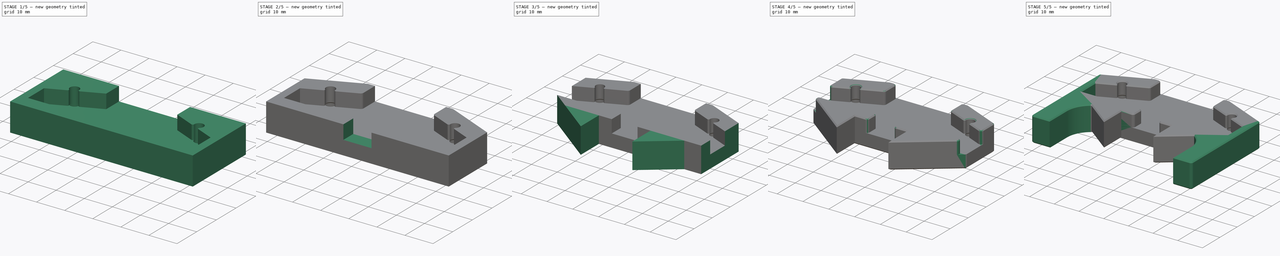
[diagram: build sequence overview — one tinted view per stage of 5, left to right]
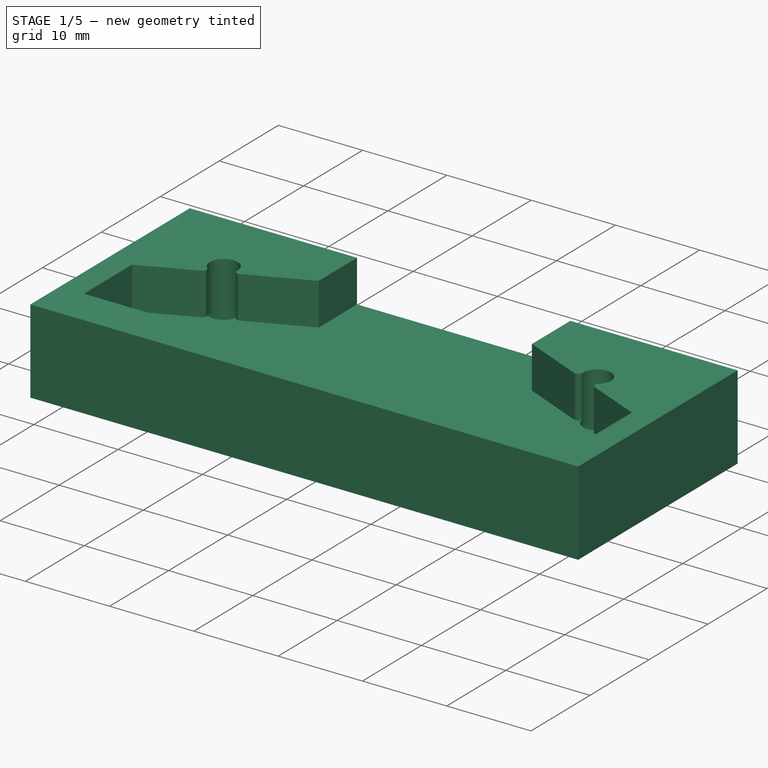
[diagram: stage 1 of 5 — iso view after this stage's code; geometry added in this stage tinted green]
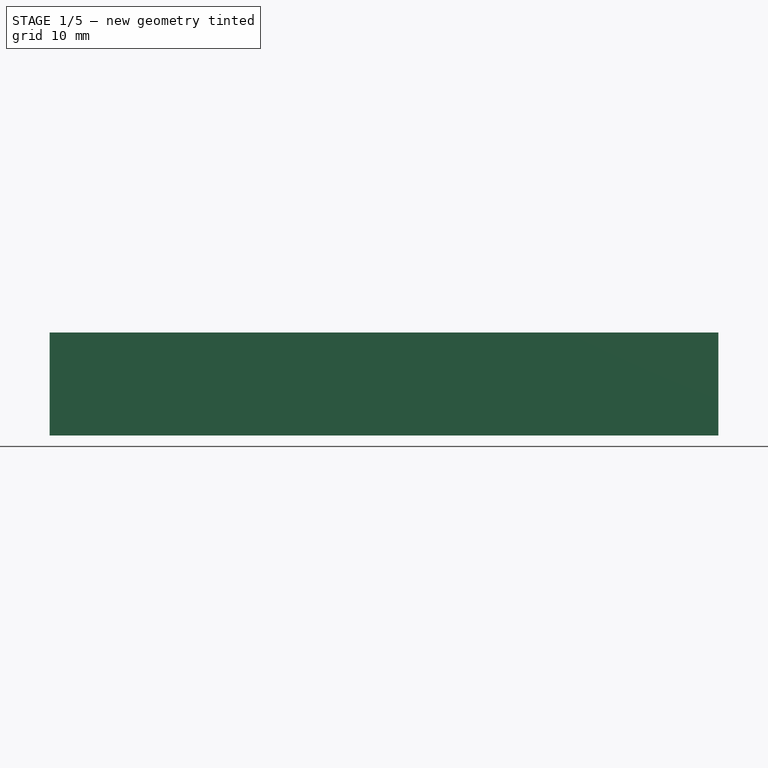
[diagram: stage 1 of 5 — front view after this stage's code; geometry added in this stage tinted green]
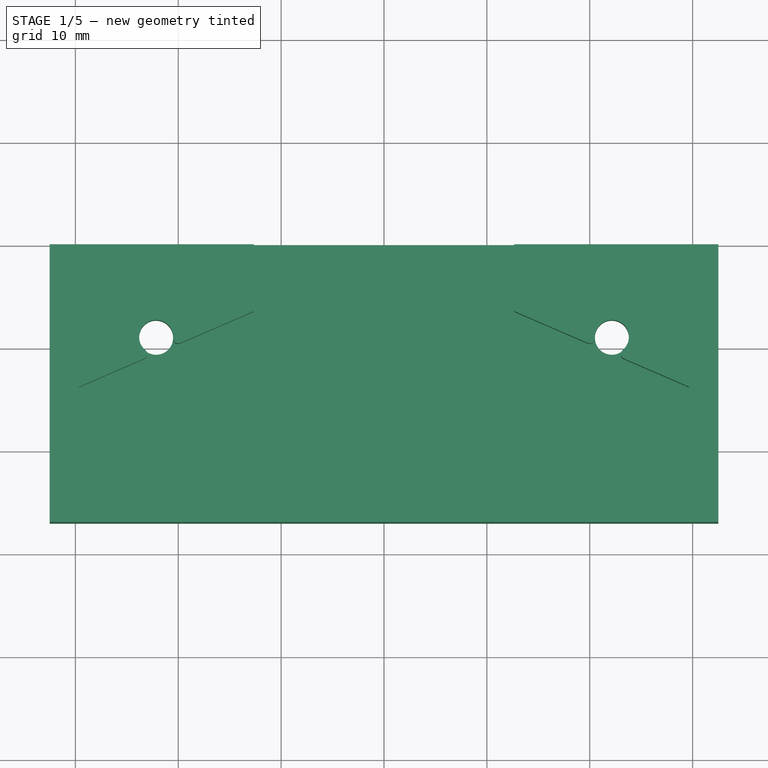
[diagram: stage 1 of 5 — top view after this stage's code; geometry added in this stage tinted green]
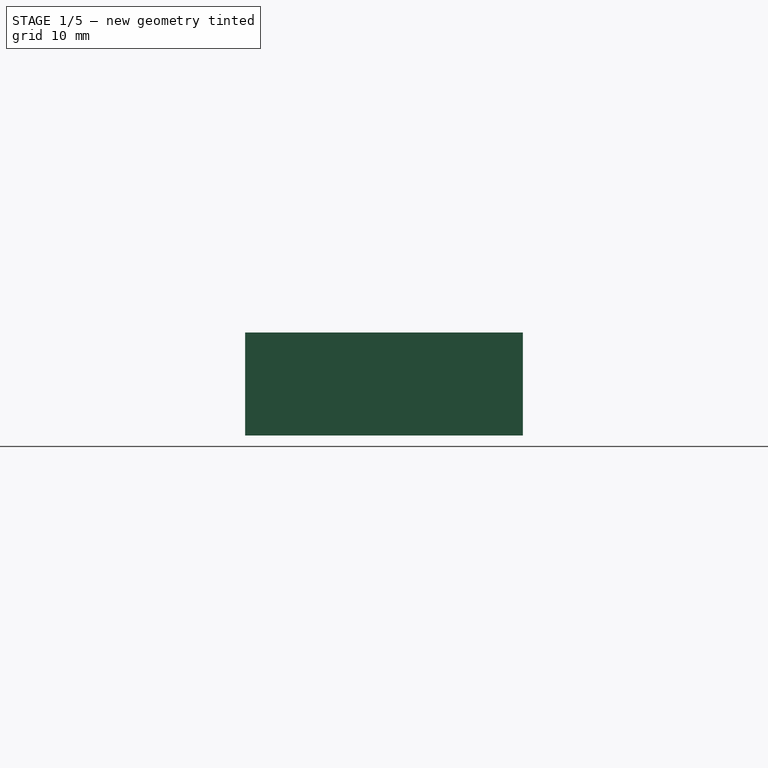
[diagram: stage 1 of 5 — right view after this stage's code; geometry added in this stage tinted green]
FCSTD DOCUMENT  (FreeCAD 0.21R33675 (Git))
Label: radius-caliper
License: All rights reserved
LicenseURL: http://en.wikipedia.org/wiki/All_rights_reserved
objects: Sketcher::SketchObject×9, PartDesign::Pocket×7, PartDesign::Fillet×6, PartDesign::Chamfer×4, PartDesign::Pad×3, PartDesign::Body×2, PartDesign::Mirrored×2, PartDesign::FeatureBase×1
note: 54 computed .brp shape members not serialized (recipe doc carries the construction recipe); baked Part::Feature solids carry a one-line shape summary decoded from their .brp

FEATURE [Sketcher::SketchObject] Sketch
  FullyConstrained = true
  MapMode = 5
  Support = -> [XY_Plane]
  sketch-geometry (4):
    g0: LineSegment StartX=-32.5 StartY=0 StartZ=0 EndX=32.5 EndY=0 EndZ=0
    g1: LineSegment StartX=32.5 StartY=0 StartZ=0 EndX=32.5 EndY=-27 EndZ=0
    g2: LineSegment StartX=32.5 StartY=-27 StartZ=0 EndX=-32.5 EndY=-27 EndZ=0
    g3: LineSegment StartX=-32.5 StartY=-27 StartZ=0 EndX=-32.5 EndY=0 EndZ=0
  constraints (12):
    c: Coincident(g0,g1)
    c: Coincident(g1,g2)
    c: Coincident(g2,g3)
    c: Coincident(g3,g0)
    c: Horizontal(g0)
    c: Horizontal(g2)
    c: Vertical(g1)
    c: Vertical(g3)
    c: PointOnObject(g0,g-1)
    c: DistanceX(g0,g0) = 65
    c: DistanceX(g0,g-1) = 32.5
    c: DistanceY(g3,g3) = 27
FEATURE [PartDesign::Pad] Pad
  Direction = (0,0,1)
  Length = 10
  Length2 = 10
  Profile = -> Sketch
  ReferenceAxis = -> Sketch [N_Axis]
  Type = 0
FEATURE [Sketcher::SketchObject] Sketch001
  ExternalGeometry = -> [Pad]
  FullyConstrained = true
  MapMode = 5
  Placement = pos=(0,0,10) rot=(0,0,1;0rad)
  Support = -> [Pad]
  sketch-geometry (8):
    g0: LineSegment StartX=-29.65 StartY=-22 StartZ=0 EndX=29.65 EndY=-22 EndZ=0
    g1: LineSegment StartX=29.65 StartY=-22 StartZ=0 EndX=29.65 EndY=-13.85 EndZ=0
    g2: LineSegment StartX=29.65 StartY=-13.85 StartZ=0 EndX=12.65 EndY=-6.5 EndZ=0
    g3: LineSegment StartX=12.65 StartY=-6.5 StartZ=0 EndX=12.65 EndY=0 EndZ=0
    g4: LineSegment StartX=12.65 StartY=0 StartZ=0 EndX=-12.65 EndY=0 EndZ=0
    g5: LineSegment StartX=-12.65 StartY=0 StartZ=0 EndX=-12.65 EndY=-6.5 EndZ=0
    g6: LineSegment StartX=-12.65 StartY=-6.5 StartZ=0 EndX=-29.65 EndY=-13.85 EndZ=0
    g7: LineSegment StartX=-29.65 StartY=-13.85 StartZ=0 EndX=-29.65 EndY=-22 EndZ=0
  constraints (24):
    c: Horizontal(g0)
    c: Coincident(g0,g1)
    c: Vertical(g1)
    c: Coincident(g1,g2)
    c: Coincident(g2,g3)
    c: PointOnObject(g3,g-1)
    c: Vertical(g3)
    c: Coincident(g3,g4)
    c: PointOnObject(g4,g-1)
    c: Coincident(g4,g5)
    c: Vertical(g5)
    c: Coincident(g5,g6)
    c: Coincident(g6,g7)
    c: Coincident(g7,g0)
    c: Vertical(g7)
    c: Equal(g7,g1)
    c: Equal(g6,g2)
    c: Equal(g5,g3)
    c: DistanceX(g4,g4) = 25.3
    c: DistanceX(g4,g-1) = 12.65
    c: DistanceX(g0,g0) = 59.3
    c: DistanceY(g7,g7) = 8.15
    c: DistanceY(g0,g5) = 15.5
    c: DistanceY(g-3,g0) = 5
FEATURE [PartDesign::Pocket] Pocket
  BaseFeature = -> Pad
  Direction = (0,0,-1)
  Length = 5
  Length2 = 5
  Profile = -> Sketch001
  ReferenceAxis = -> Sketch001 [N_Axis]
  Type = 0
FEATURE [Sketcher::SketchObject] Sketch002
  ExternalGeometry = -> [Pocket]
  FullyConstrained = true
  MapMode = 5
  Placement = pos=(0,0,10) rot=(0,0,1;0rad)
  Support = -> [Pocket]
  sketch-geometry (4):
    g0: Circle CenterX=-22.15 CenterY=-9.00735 CenterZ=0 NormalX=0 NormalY=0 NormalZ=1 AngleXU=0 Radius=1.65
    g1: Circle CenterX=22.15 CenterY=-9.00735 CenterZ=0 NormalX=0 NormalY=0 NormalZ=1 AngleXU=0 Radius=1.65
    g2: LineSegment StartX=-22.15 StartY=-9.00735 StartZ=0 EndX=-22.15 EndY=-10.6074 EndZ=0
    g3: LineSegment StartX=22.15 StartY=-9.00735 StartZ=0 EndX=22.15 EndY=-10.6074 EndZ=0
  constraints (12):
    c: Coincident(g2,g0)
    c: PointOnObject(g2,g-3)
    c: Vertical(g2)
    c: Coincident(g3,g1)
    c: PointOnObject(g3,g-4)
    c: Vertical(g3)
    c: Equal(g0,g1)
    c: Radius(g1) = 1.65
    c: DistanceY(g2,g2) = 1.6
    c: DistanceY(g3,g3) = 1.6
    c: DistanceX(g-3,g0) = 7.5
    c: DistanceX(g1,g-4) = 7.5
FEATURE [PartDesign::Pocket] Pocket001
  BaseFeature = -> Pocket
  Direction = (0,0,-1)
  Length = 5
  Length2 = 5
  Profile = -> Sketch002
  ReferenceAxis = -> Sketch002 [N_Axis]
  Type = 1
FEATURE [PartDesign::Fillet] Fillet
  Base = -> Pocket001 [Edge48,Edge49,Edge45,Edge46]
  BaseFeature = -> Pocket001
  Radius = 0.5
  SupportTransform = false
  UseAllEdges = false
FEATURE [Sketcher::SketchObject] Sketch003
  ExternalGeometry = -> [Fillet]
  FullyConstrained = true
  MapMode = 5
  Placement = pos=(0,0,0) rot=(1,0,0;3.14159rad)
  Support = -> [Fillet]
  sketch-geometry (2):
    g0: Circle CenterX=-22.15 CenterY=9.00735 CenterZ=0 NormalX=0 NormalY=0 NormalZ=1 AngleXU=0 Radius=2
    g1: Circle CenterX=22.15 CenterY=9.00735 CenterZ=0 NormalX=0 NormalY=0 NormalZ=1 AngleXU=0 Radius=2
  constraints (4):
    c: Coincident(g0,g-3)
    c: Coincident(g1,g-4)
    c: Radius(g0) = 2
    c: Equal(g0,g1)
FEATURE [PartDesign::Pocket] Pocket002
  BaseFeature = -> Fillet
  Direction = (0,0,1)
  Length = 4.5
  Length2 = 5
  Profile = -> Sketch003
  ReferenceAxis = -> Sketch003 [N_Axis]
  Type = 0
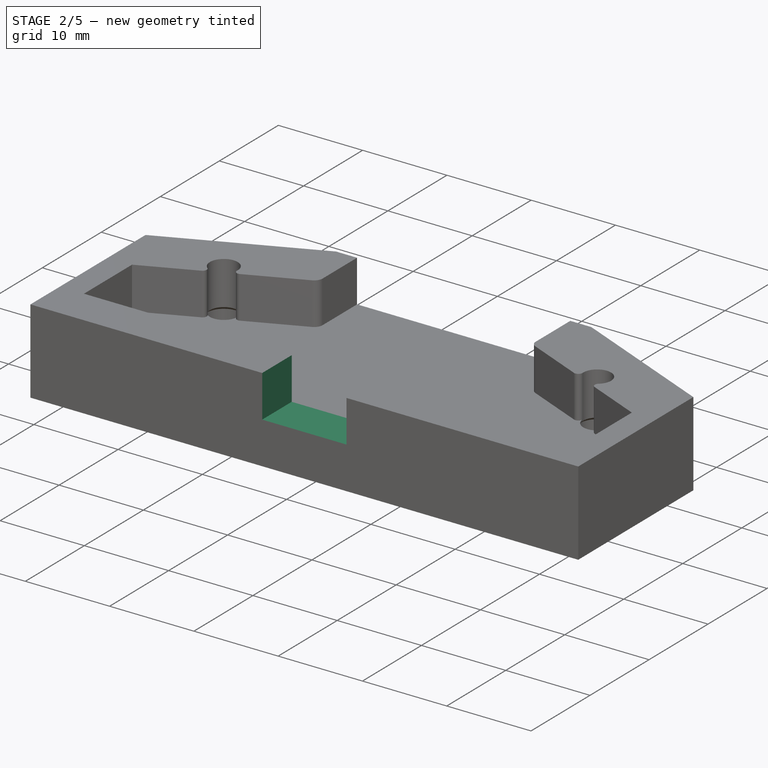
[diagram: stage 2 of 5 — iso view after this stage's code; geometry added in this stage tinted green]
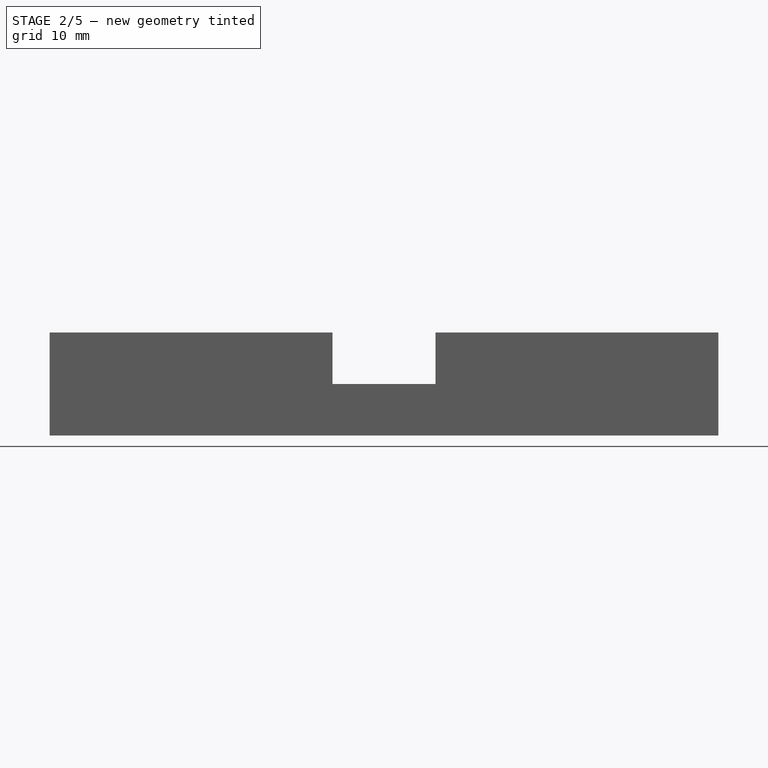
[diagram: stage 2 of 5 — front view after this stage's code; geometry added in this stage tinted green]
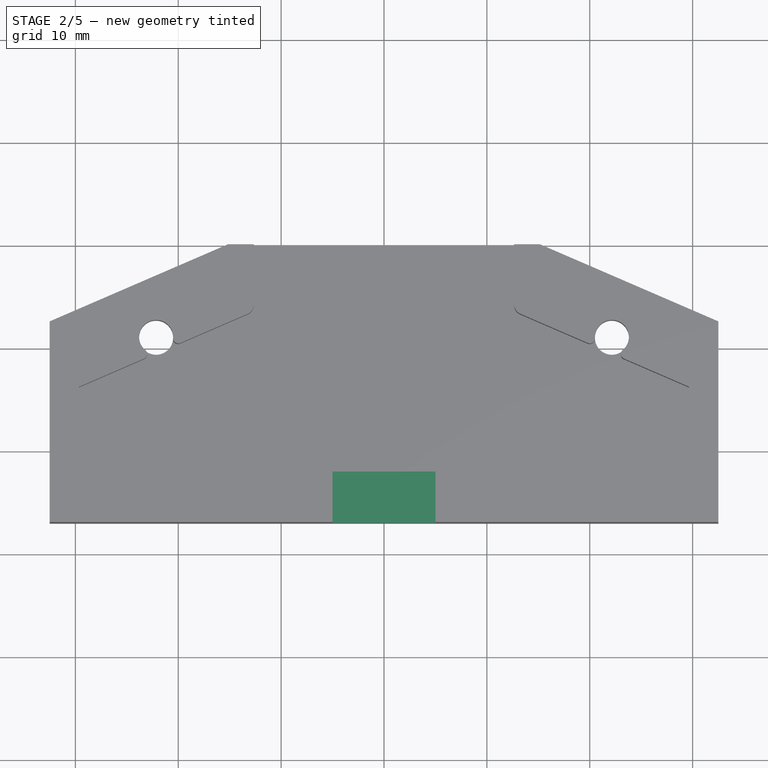
[diagram: stage 2 of 5 — top view after this stage's code; geometry added in this stage tinted green]
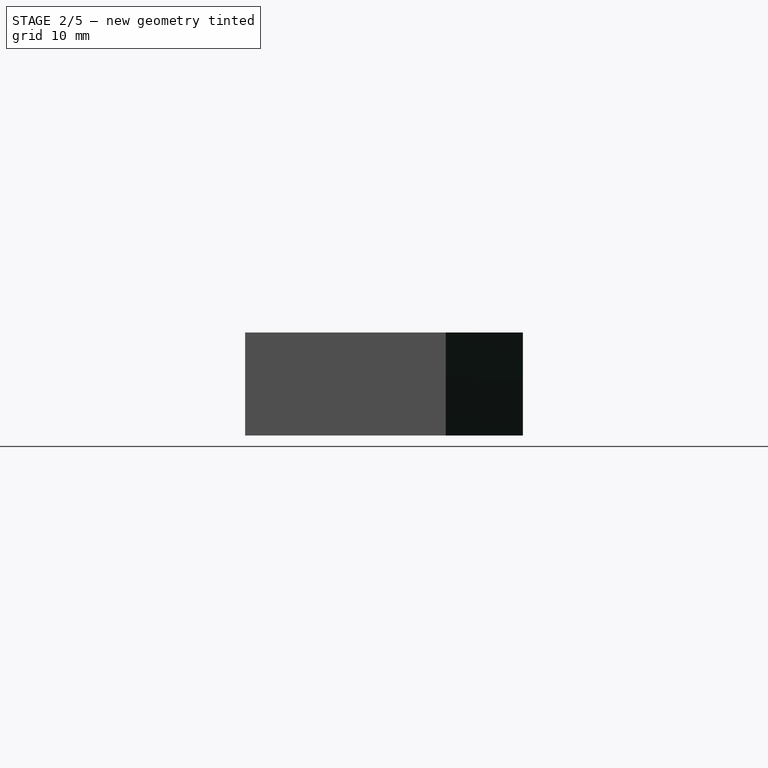
[diagram: stage 2 of 5 — right view after this stage's code; geometry added in this stage tinted green]
FEATURE [PartDesign::Chamfer] Chamfer
  Angle = 45
  Base = -> Pocket002 [Edge70,Edge35]
  BaseFeature = -> Pocket002
  ChamferType = 0
  FlipDirection = false
  Size = 0.34
  Size2 = 1
  SupportTransform = false
  UseAllEdges = false
FEATURE [PartDesign::Fillet] Fillet001
  Base = -> Chamfer [Edge52,Edge66]
  BaseFeature = -> Chamfer
  Radius = 1
  SupportTransform = false
  UseAllEdges = false
FEATURE [Sketcher::SketchObject] Sketch004
  ExternalGeometry = -> [Fillet001]
  FullyConstrained = true
  MapMode = 5
  Placement = pos=(0,0,10) rot=(0,0,1;0rad)
  Support = -> [Fillet001]
  sketch-geometry (4):
    g0: LineSegment StartX=-5 StartY=-22 StartZ=0 EndX=5 EndY=-22 EndZ=0
    g1: LineSegment StartX=5 StartY=-22 StartZ=0 EndX=5 EndY=-27 EndZ=0
    g2: LineSegment StartX=5 StartY=-27 StartZ=0 EndX=-5 EndY=-27 EndZ=0
    g3: LineSegment StartX=-5 StartY=-27 StartZ=0 EndX=-5 EndY=-22 EndZ=0
  constraints (12):
    c: Coincident(g0,g1)
    c: Coincident(g1,g2)
    c: Coincident(g2,g3)
    c: Coincident(g3,g0)
    c: Horizontal(g0)
    c: Horizontal(g2)
    c: Vertical(g1)
    c: Vertical(g3)
    c: PointOnObject(g0,g-3)
    c: PointOnObject(g1,g-4)
    c: DistanceX(g2,g2) = 10
    c: DistanceX(g0,g-1) = 5
FEATURE [PartDesign::Pocket] Pocket003
  BaseFeature = -> Fillet001
  Direction = (0,0,-1)
  Length = 0
  Length2 = 5
  Profile = -> Sketch004
  ReferenceAxis = -> Sketch004 [N_Axis]
  Refine = true
  Type = 3
  UpToFace = -> Fillet001 [Face23]
FEATURE [Sketcher::SketchObject] Sketch005
  ExternalGeometry = -> [Pocket003]
  FullyConstrained = true
  MapMode = 5
  Placement = pos=(0,0,10) rot=(0,0,1;0rad)
  Support = -> [Pocket003]
  sketch-geometry (6):
    g0: LineSegment StartX=-32.5 StartY=-7.5 StartZ=0 EndX=-15.1531 EndY=0 EndZ=0
    g1: LineSegment StartX=-15.1531 StartY=0 StartZ=0 EndX=-32.5 EndY=0 EndZ=0
    g2: LineSegment StartX=-32.5 StartY=0 StartZ=0 EndX=-32.5 EndY=-7.5 EndZ=0
    g3: LineSegment StartX=15.1531 StartY=0 StartZ=0 EndX=32.5 EndY=-7.5 EndZ=0
    g4: LineSegment StartX=32.5 StartY=-7.5 StartZ=0 EndX=32.5 EndY=0 EndZ=0
    g5: LineSegment StartX=32.5 StartY=0 StartZ=0 EndX=15.1531 EndY=0 EndZ=0
  constraints (16):
    c: PointOnObject(g0,g-3)
    c: PointOnObject(g0,g-1)
    c: Coincident(g0,g1)
    c: Coincident(g1,g-3)
    c: Coincident(g1,g2)
    c: Coincident(g2,g0)
    c: PointOnObject(g3,g-1)
    c: PointOnObject(g3,g-4)
    c: Coincident(g3,g4)
    c: Coincident(g4,g-4)
    c: Coincident(g4,g5)
    c: Coincident(g5,g3)
    c: Parallel(g0,g-5)
    c: Parallel(g3,g-6)
    c: DistanceY(g2,g2) = 7.5
    c: Equal(g2,g4)
FEATURE [PartDesign::Pocket] Pocket004
  BaseFeature = -> Pocket003
  Direction = (0,0,-1)
  Length = 5
  Length2 = 5
  Profile = -> Sketch005
  ReferenceAxis = -> Sketch005 [N_Axis]
  Type = 1
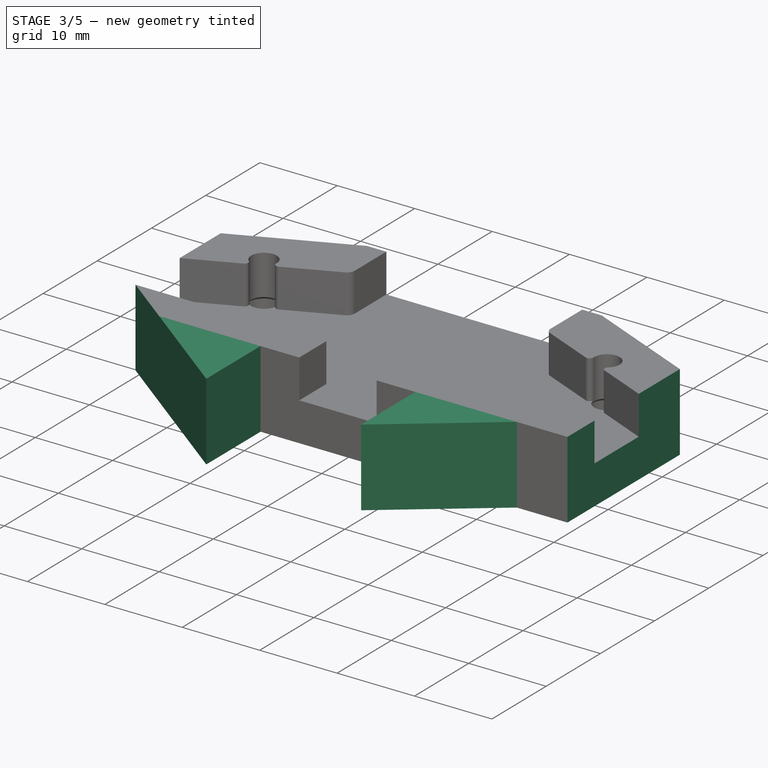
[diagram: stage 3 of 5 — iso view after this stage's code; geometry added in this stage tinted green]
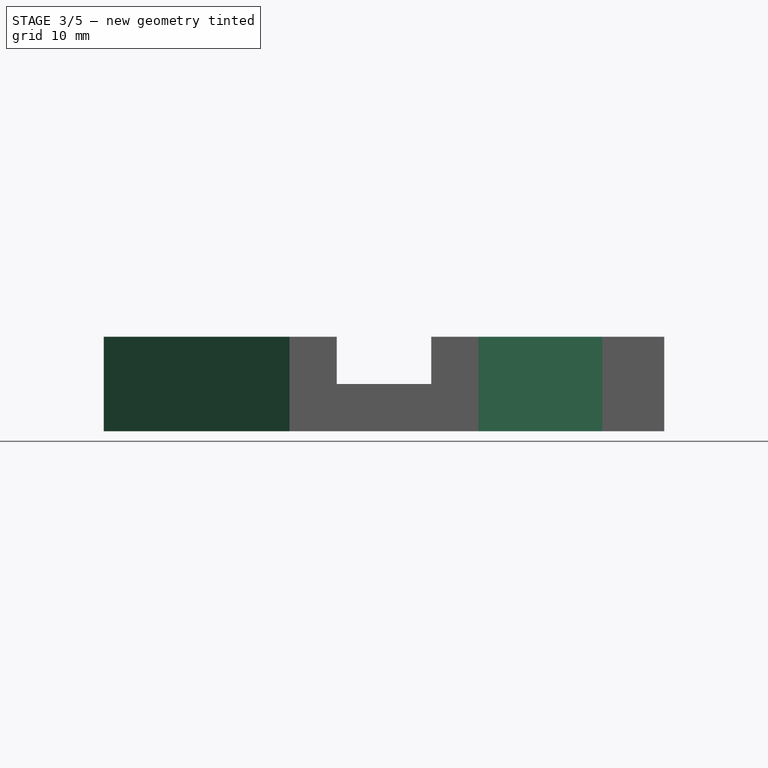
[diagram: stage 3 of 5 — front view after this stage's code; geometry added in this stage tinted green]
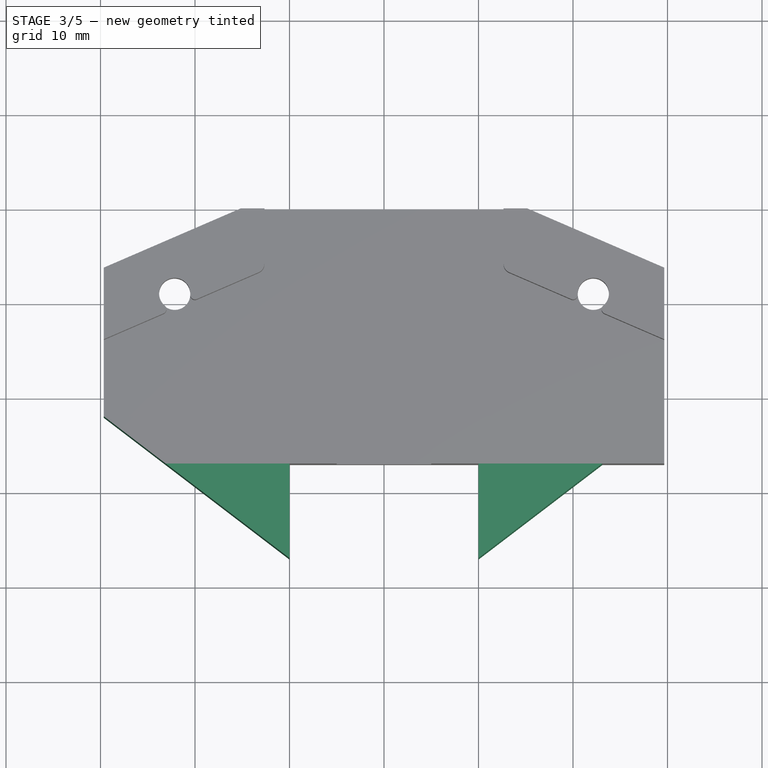
[diagram: stage 3 of 5 — top view after this stage's code; geometry added in this stage tinted green]
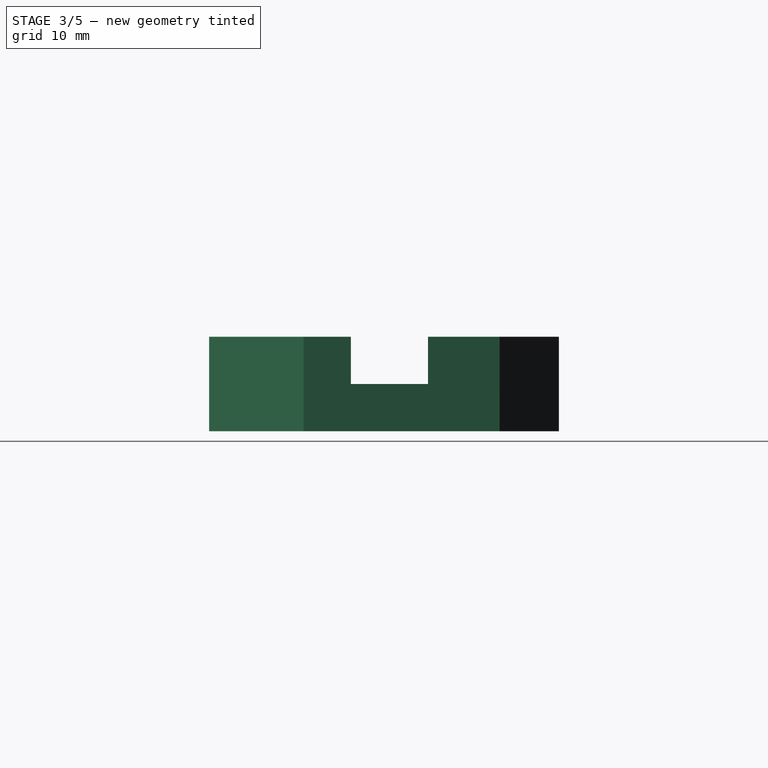
[diagram: stage 3 of 5 — right view after this stage's code; geometry added in this stage tinted green]
FEATURE [PartDesign::FeatureBase] Clone
  BaseFeature = -> Pocket004
FEATURE [PartDesign::Body] Body  label="outer"
  Group = -> [Sketch,Pad,Sketch001,Pocket,Sketch002,Pocket001,Fillet,Sketch003,Pocket002,Chamfer,Fillet001,Sketch004,Pocket003,Sketch005,Pocket004,Sketch006,Pad001,Fillet002,Fillet003,Chamfer001,Chamfer002]
  Origin = -> Origin
  Tip = -> Chamfer002
FEATURE [Sketcher::SketchObject] Sketch007
  ExternalGeometry = -> [Clone]
  FullyConstrained = true
  MapMode = 5
  Placement = pos=(0,0,10) rot=(0,0,1;0rad)
  Support = -> [Clone]
  sketch-geometry (8):
    g0: LineSegment StartX=-32.5 StartY=-27 StartZ=0 EndX=-29.65 EndY=-27 EndZ=0
    g1: LineSegment StartX=-29.65 StartY=-27 StartZ=0 EndX=-29.65 EndY=0 EndZ=0
    g2: LineSegment StartX=-29.65 StartY=0 StartZ=0 EndX=-32.5 EndY=0 EndZ=0
    g3: LineSegment StartX=-32.5 StartY=0 StartZ=0 EndX=-32.5 EndY=-27 EndZ=0
    g4: LineSegment StartX=32.5 StartY=-27 StartZ=0 EndX=29.65 EndY=-27 EndZ=0
    g5: LineSegment StartX=29.65 StartY=-27 StartZ=0 EndX=29.65 EndY=0 EndZ=0
    g6: LineSegment StartX=29.65 StartY=0 StartZ=0 EndX=32.5 EndY=0 EndZ=0
    g7: LineSegment StartX=32.5 StartY=0 StartZ=0 EndX=32.5 EndY=-27 EndZ=0
  constraints (22):
    c: Coincident(g0,g1)
    c: Coincident(g1,g2)
    c: Coincident(g2,g3)
    c: Coincident(g3,g0)
    c: Horizontal(g0)
    c: Horizontal(g2)
    c: Vertical(g1)
    c: Vertical(g3)
    c: Coincident(g0,g-6)
    c: PointOnObject(g1,g-1)
    c: Coincident(g4,g5)
    c: Coincident(g5,g6)
    c: Coincident(g6,g7)
    c: Coincident(g7,g4)
    c: Horizontal(g4)
    c: Horizontal(g6)
    c: Vertical(g5)
    c: Vertical(g7)
    c: Coincident(g4,g-5)
    c: PointOnObject(g5,g-1)
    c: Vertical(g-4,g5)
    c: Vertical(g-3,g1)
FEATURE [PartDesign::Pocket] Pocket005
  BaseFeature = -> Clone
  Direction = (0,0,-1)
  Length = 5
  Length2 = 5
  Profile = -> Sketch007
  ReferenceAxis = -> Sketch007 [N_Axis]
  Type = 1
FEATURE [Sketcher::SketchObject] Sketch008
  ExternalGeometry = -> [Pocket005]
  FullyConstrained = true
  MapMode = 5
  Placement = pos=(0,0,10) rot=(0,0,1;0rad)
  Support = -> [Pocket005]
  sketch-geometry (3):
    g0: LineSegment StartX=-29.65 StartY=-22 StartZ=0 EndX=-10 EndY=-37 EndZ=0
    g1: LineSegment StartX=-10 StartY=-37 StartZ=0 EndX=-10 EndY=-22 EndZ=0
    g2: LineSegment StartX=-10 StartY=-22 StartZ=0 EndX=-29.65 EndY=-22 EndZ=0
  constraints (8):
    c: Coincident(g-3,g0)
    c: Coincident(g0,g1)
    c: PointOnObject(g1,g-3)
    c: Vertical(g1)
    c: Coincident(g1,g2)
    c: Coincident(g2,g0)
    c: DistanceY(g0,g-4) = 10
    c: DistanceX(g1,g-1) = 10
FEATURE [PartDesign::Pad] Pad002
  BaseFeature = -> Pocket005
  Direction = (0,0,1)
  Length = 10
  Length2 = 10
  Profile = -> Sketch008
  ReferenceAxis = -> Sketch008 [N_Axis]
  Type = 3
  UpToFace = -> Pocket005 [Face16]
FEATURE [PartDesign::Mirrored] Mirrored
  BaseFeature = -> Pad002
  MirrorPlane = -> Sketch008 [V_Axis]
  Originals = -> [Pad002]
FEATURE [PartDesign::Pocket] Pocket006
  BaseFeature = -> Mirrored
  Direction = (0,0,-1)
  Length = 5
  Length2 = 5
  Profile = -> Mirrored [Face37]
  Type = 1
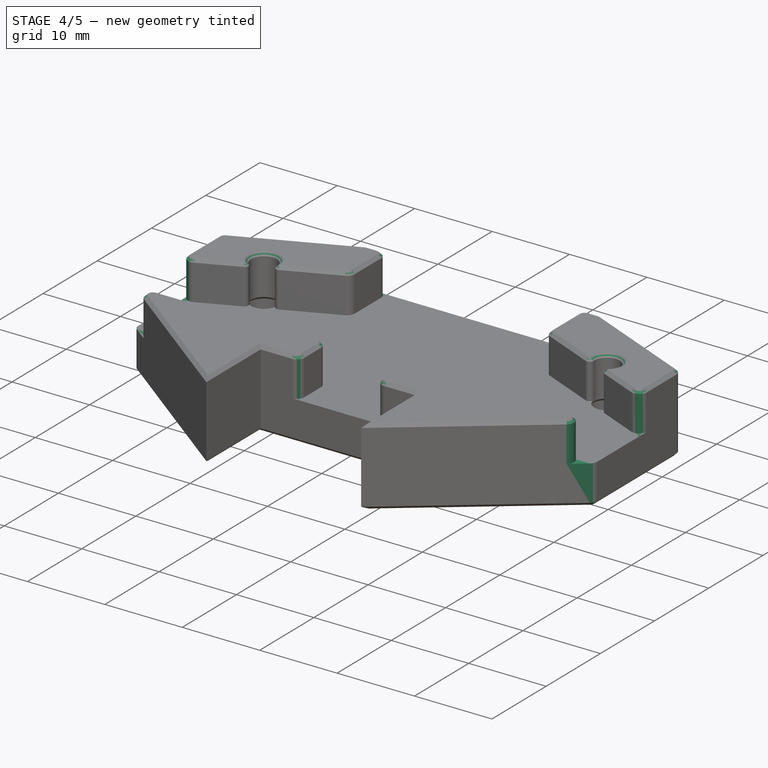
[diagram: stage 4 of 5 — iso view after this stage's code; geometry added in this stage tinted green]
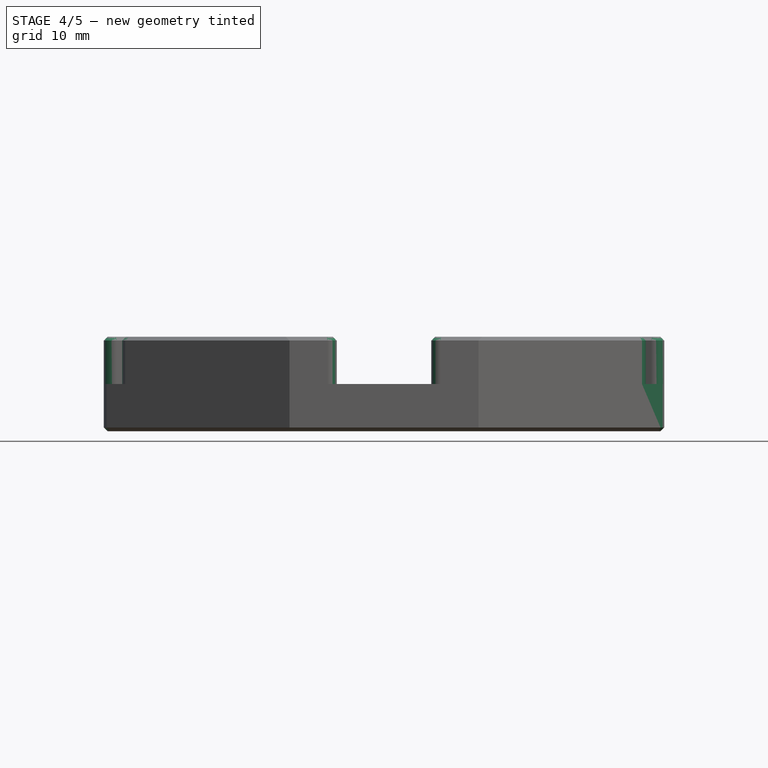
[diagram: stage 4 of 5 — front view after this stage's code; geometry added in this stage tinted green]
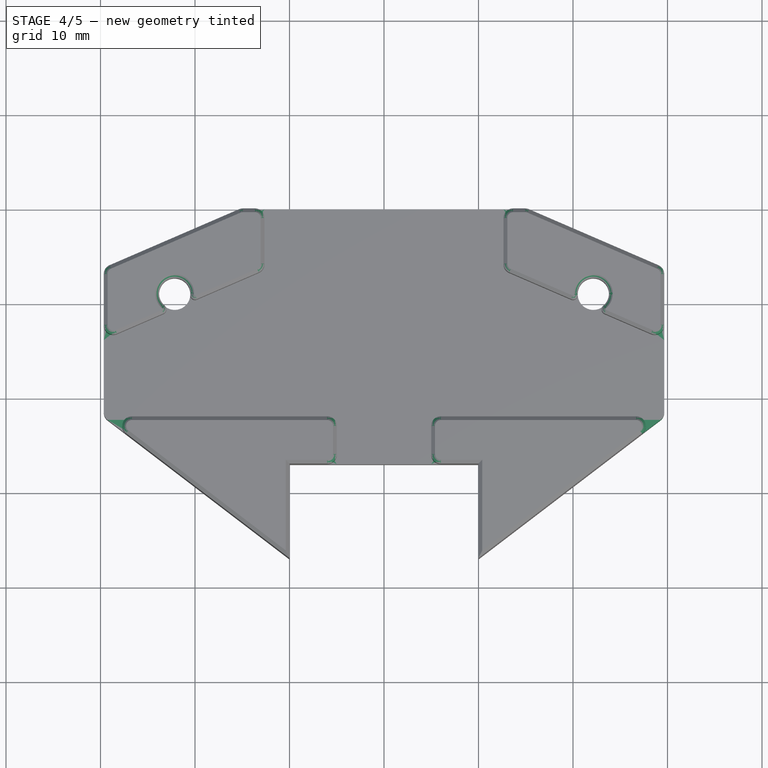
[diagram: stage 4 of 5 — top view after this stage's code; geometry added in this stage tinted green]
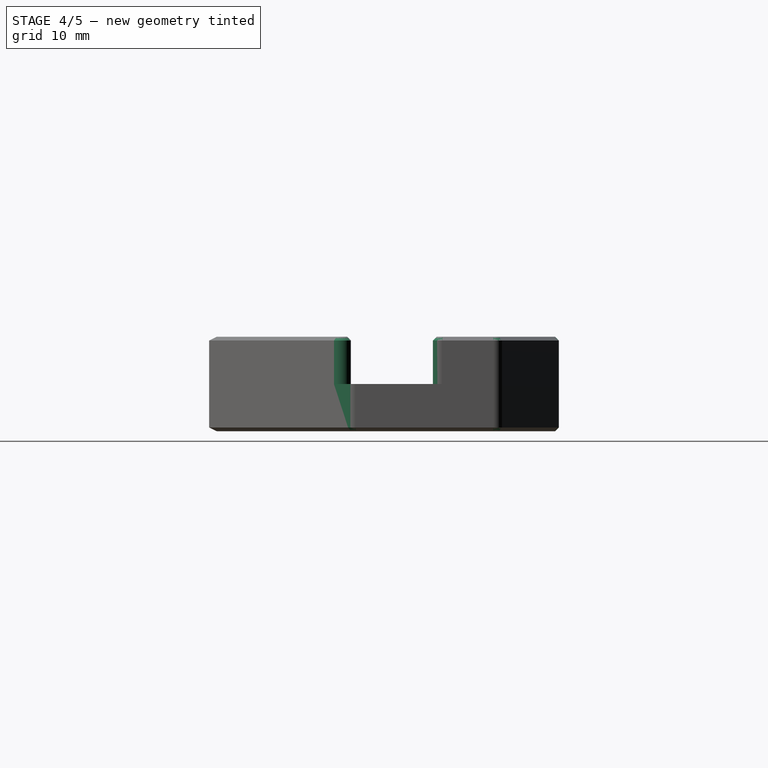
[diagram: stage 4 of 5 — right view after this stage's code; geometry added in this stage tinted green]
FEATURE [PartDesign::Mirrored] Mirrored001
  BaseFeature = -> Pocket006
  MirrorPlane = -> YZ_Plane001
  Originals = -> [Pocket006]
  Refine = true
FEATURE [PartDesign::Fillet] Fillet004
  Base = -> Mirrored001 [Edge25,Edge113,Edge98,Edge93,Edge100,Edge94,Edge114,Edge71,Edge45,Edge28,Edge31,Edge38,Edge36,Edge34]
  BaseFeature = -> Mirrored001
  Radius = 1
  SupportTransform = false
  UseAllEdges = false
FEATURE [PartDesign::Fillet] Fillet005
  Base = -> Fillet004 [Edge148,Edge27]
  BaseFeature = -> Fillet004
  Radius = 1
  SupportTransform = false
  UseAllEdges = false
FEATURE [PartDesign::Chamfer] Chamfer003
  Angle = 45
  Base = -> Fillet005 [Face6,Face52,Face51,Face50,Face2]
  BaseFeature = -> Fillet005
  ChamferType = 0
  FlipDirection = false
  Size = 0.4
  Size2 = 1
  SupportTransform = false
  UseAllEdges = false
FEATURE [PartDesign::Body] Body001  label="inner"
  Group = -> [Clone,Sketch007,Pocket005,Sketch008,Pad002,Mirrored,Pocket006,Mirrored001,Fillet004,Fillet005,Chamfer003]
  Origin = -> Origin001
  Tip = -> Chamfer003
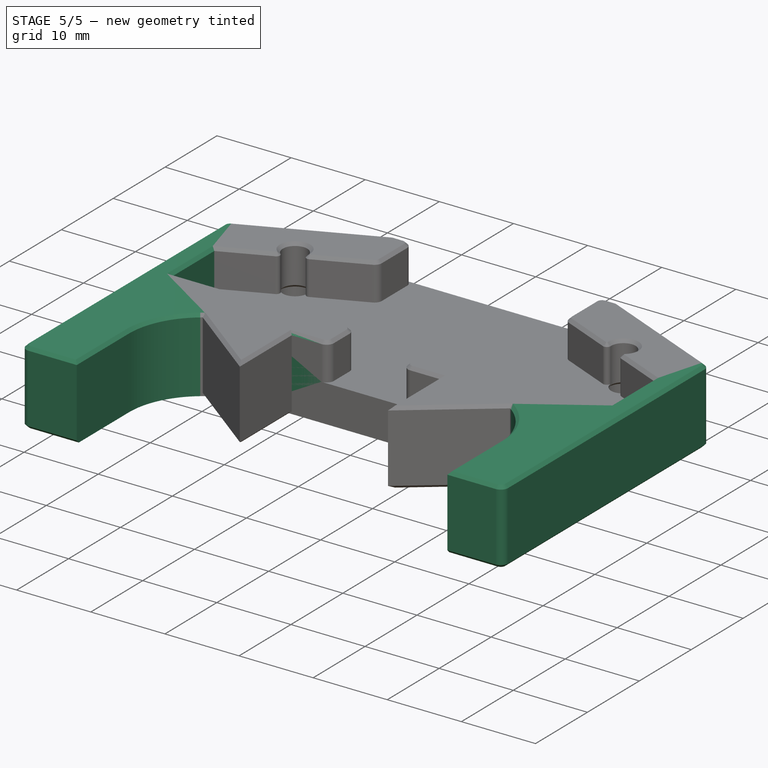
[diagram: stage 5 of 5 — iso view after this stage's code; geometry added in this stage tinted green]
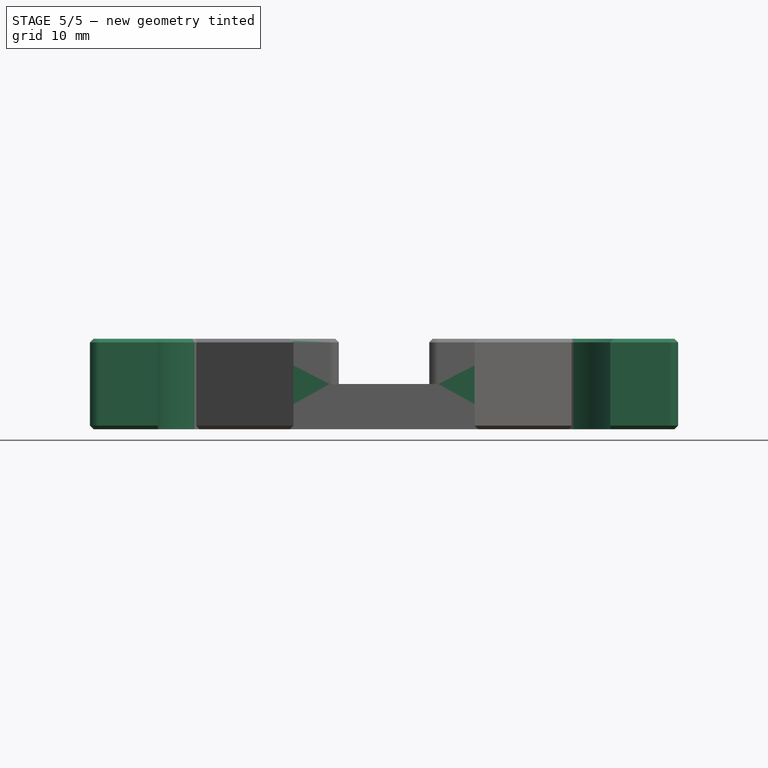
[diagram: stage 5 of 5 — front view after this stage's code; geometry added in this stage tinted green]
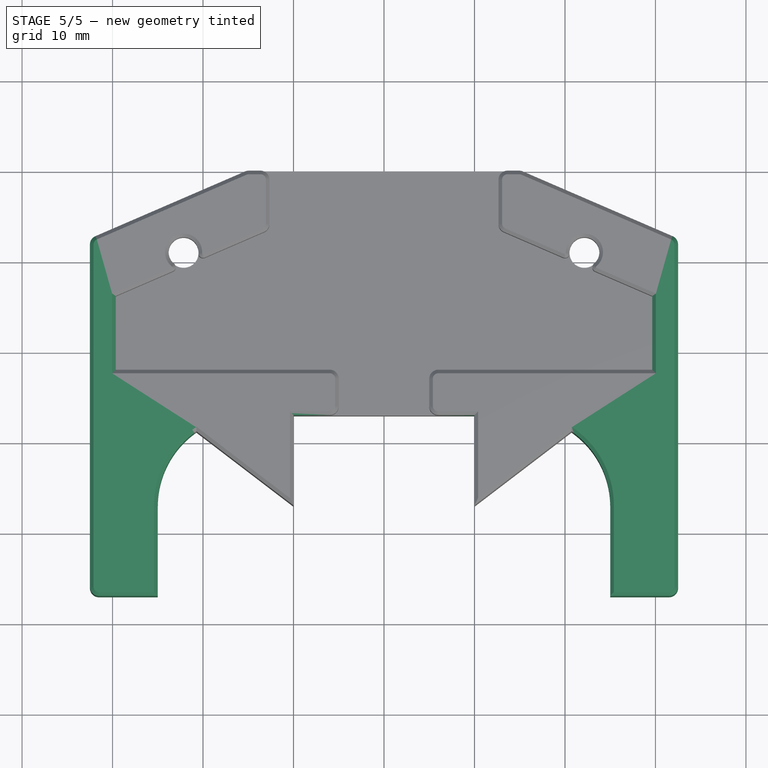
[diagram: stage 5 of 5 — top view after this stage's code; geometry added in this stage tinted green]
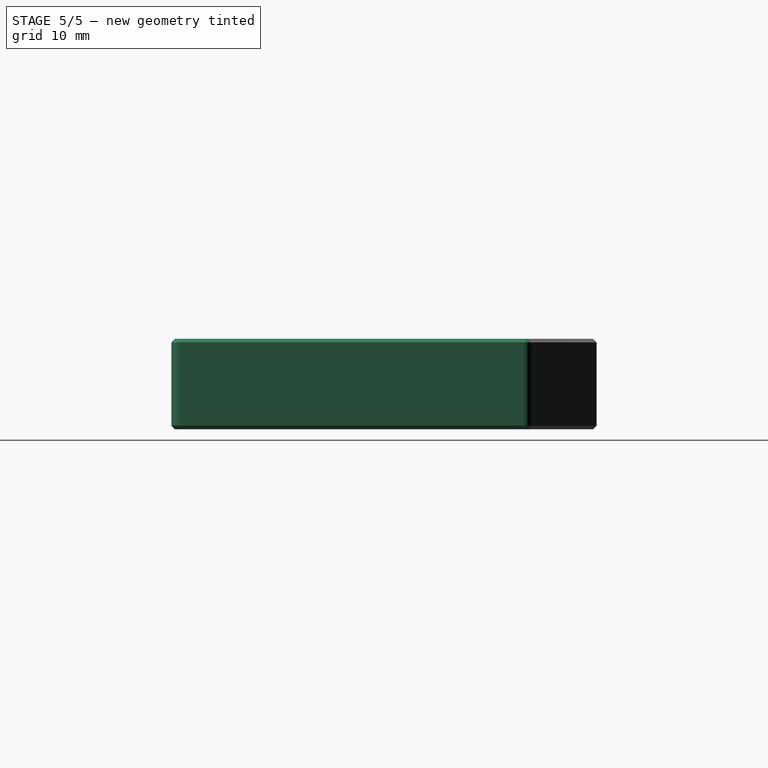
[diagram: stage 5 of 5 — right view after this stage's code; geometry added in this stage tinted green]
FEATURE [Sketcher::SketchObject] Sketch006
  ExternalGeometry = -> [Pocket004]
  FullyConstrained = true
  MapMode = 5
  Placement = pos=(0,0,10) rot=(0,0,1;0rad)
  Support = -> [Pocket004]
  sketch-geometry (8):
    g0: LineSegment StartX=-32.5 StartY=-27 StartZ=0 EndX=-25 EndY=-27 EndZ=0
    g1: LineSegment StartX=-25 StartY=-27 StartZ=0 EndX=-25 EndY=-47 EndZ=0
    g2: LineSegment StartX=-25 StartY=-47 StartZ=0 EndX=-32.5 EndY=-47 EndZ=0
    g3: LineSegment StartX=-32.5 StartY=-47 StartZ=0 EndX=-32.5 EndY=-27 EndZ=0
    g4: LineSegment StartX=32.5 StartY=-27 StartZ=0 EndX=25 EndY=-27 EndZ=0
    g5: LineSegment StartX=25 StartY=-27 StartZ=0 EndX=25 EndY=-47 EndZ=0
    g6: LineSegment StartX=25 StartY=-47 StartZ=0 EndX=32.5 EndY=-47 EndZ=0
    g7: LineSegment StartX=32.5 StartY=-47 StartZ=0 EndX=32.5 EndY=-27 EndZ=0
  constraints (22):
    c: Coincident(g0,g1)
    c: Coincident(g1,g2)
    c: Coincident(g2,g3)
    c: Coincident(g3,g0)
    c: Horizontal(g0)
    c: Horizontal(g2)
    c: Vertical(g1)
    c: Vertical(g3)
    c: Coincident(g0,g-3)
    c: Coincident(g4,g5)
    c: Coincident(g5,g6)
    c: Coincident(g6,g7)
    c: Coincident(g7,g4)
    c: Horizontal(g4)
    c: Horizontal(g6)
    c: Vertical(g5)
    c: Vertical(g7)
    c: Coincident(g4,g-4)
    c: Equal(g2,g6)
    c: Equal(g1,g5)
    c: DistanceY(g3,g3) = 20
    c: DistanceX(g1,g5) = 50
FEATURE [PartDesign::Pad] Pad001
  BaseFeature = -> Pocket004
  Direction = (0,0,1)
  Length = 10
  Length2 = 10
  Profile = -> Sketch006
  ReferenceAxis = -> Sketch006 [N_Axis]
  Refine = true
  Type = 3
  UpToFace = -> Pocket004 [Face19]
FEATURE [PartDesign::Fillet] Fillet002
  Base = -> Pad001 [Edge37,Edge32]
  BaseFeature = -> Pad001
  Radius = 10
  SupportTransform = false
  UseAllEdges = false
FEATURE [PartDesign::Fillet] Fillet003
  Base = -> Fillet002 [Edge93,Edge86,Edge60,Edge7,Edge6,Edge59,Edge94,Edge92,Edge91,Edge90,Edge88,Edge87]
  BaseFeature = -> Fillet002
  Radius = 1
  SupportTransform = false
  UseAllEdges = false
FEATURE [PartDesign::Chamfer] Chamfer001
  Angle = 45
  Base = -> Fillet003 [Edge79]
  BaseFeature = -> Fillet003
  ChamferType = 0
  FlipDirection = false
  Size = 0.4
  Size2 = 1
  SupportTransform = false
  UseAllEdges = false
FEATURE [PartDesign::Chamfer] Chamfer002
  Angle = 45
  Base = -> Chamfer001 [Edge41,Edge128,Edge139,Edge76,Edge31,Edge77,Edge19,Edge20]
  BaseFeature = -> Chamfer001
  ChamferType = 0
  FlipDirection = false
  Size = 0.4
  Size2 = 1
  SupportTransform = false
  UseAllEdges = false
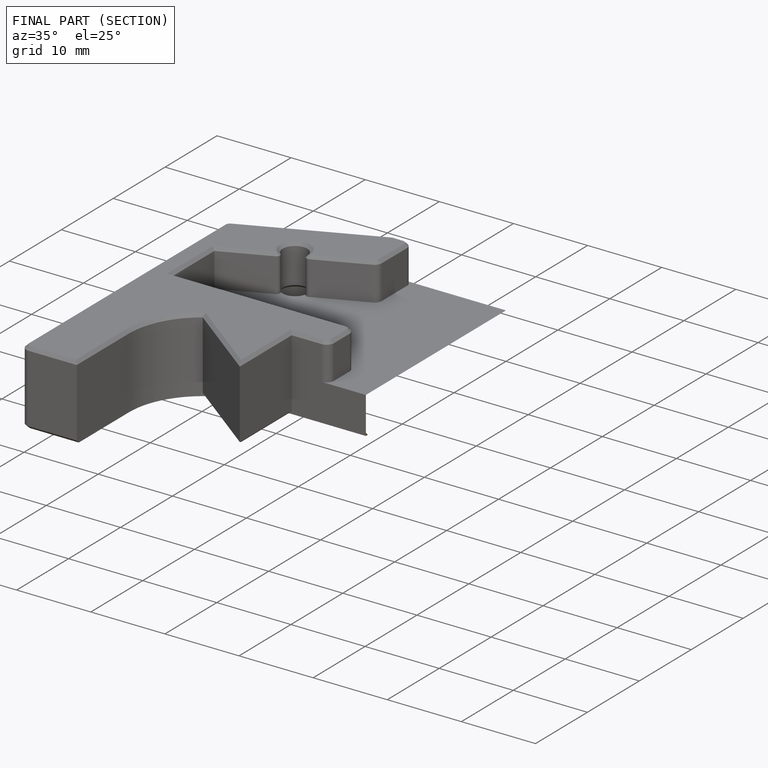
[diagram: finished part — half-section view (interior)]
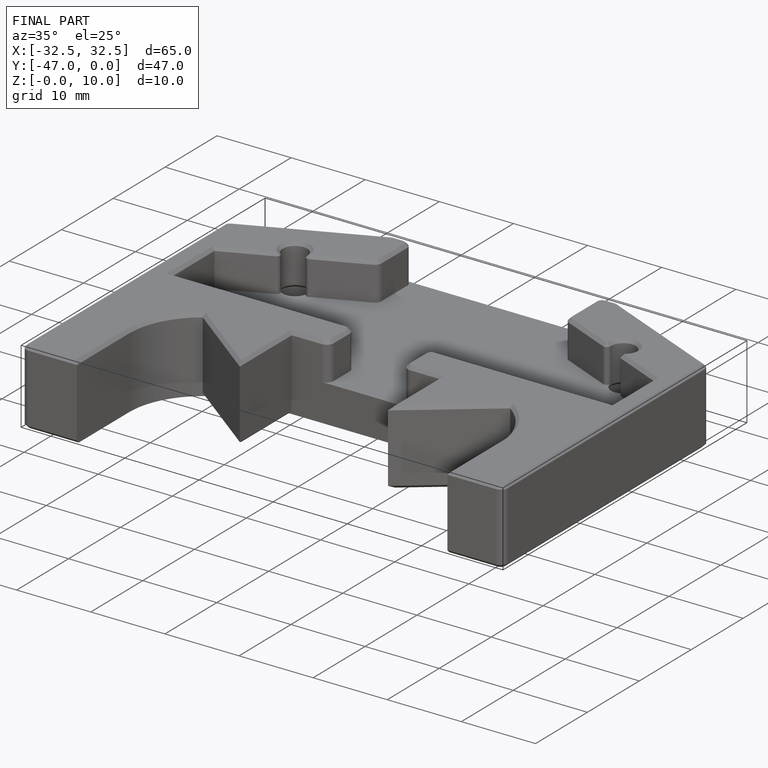
[diagram: finished part — iso view with bounding-box wireframe]
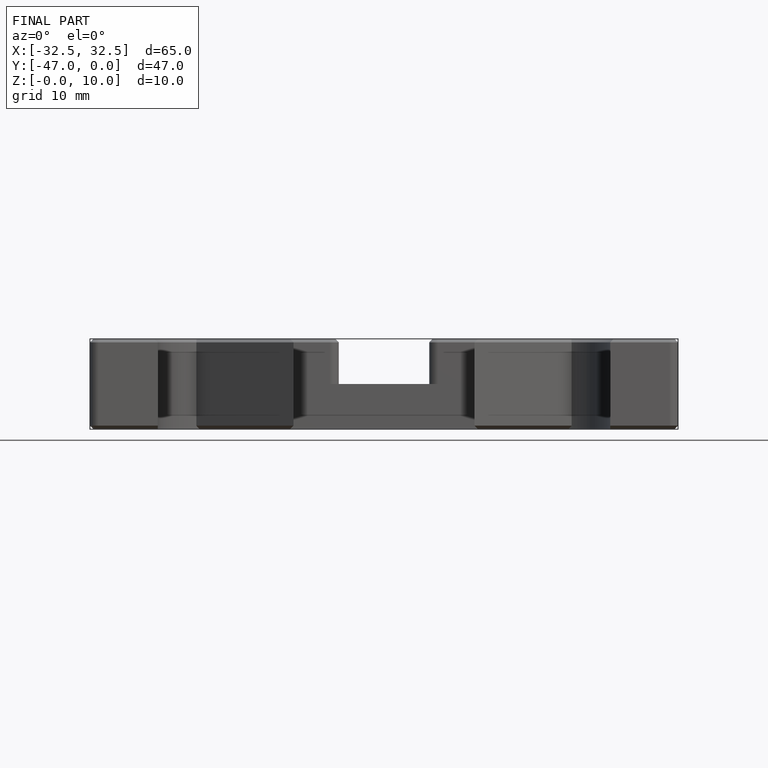
[diagram: finished part — front view with bounding-box wireframe]
